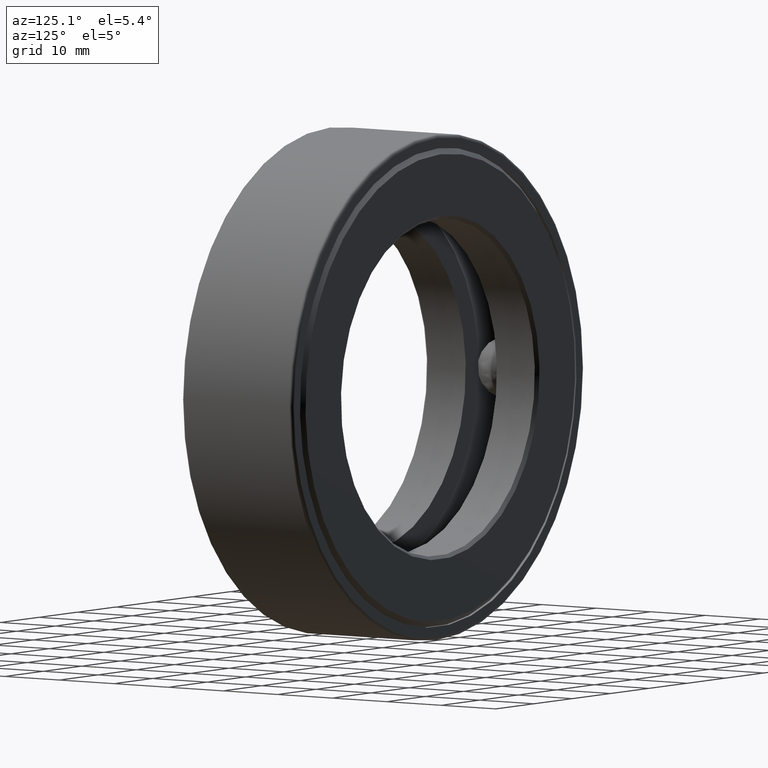
[diagram: clean part render]
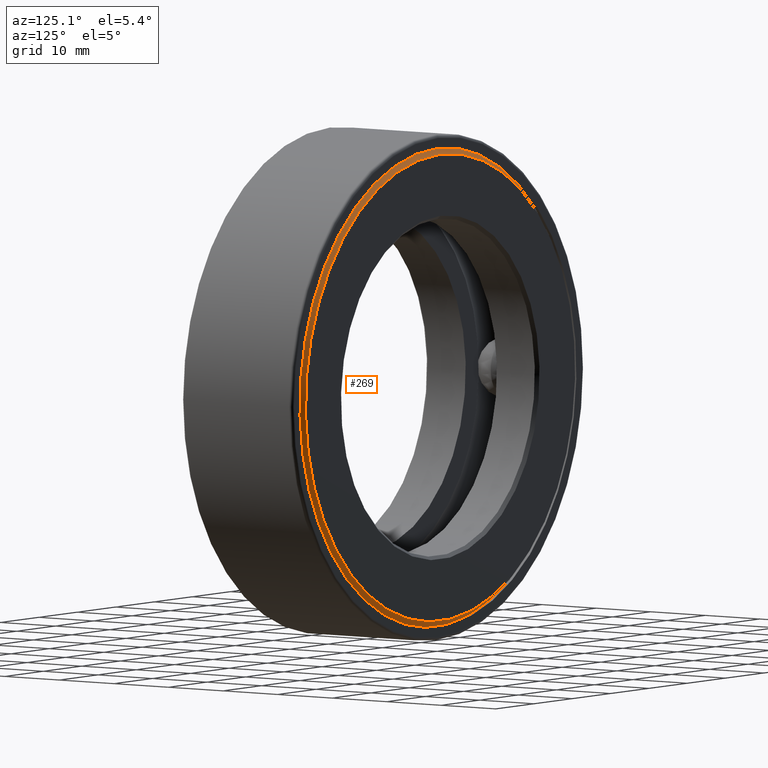
[diagram: same view with one face highlighted and labeled with its STEP entity id]
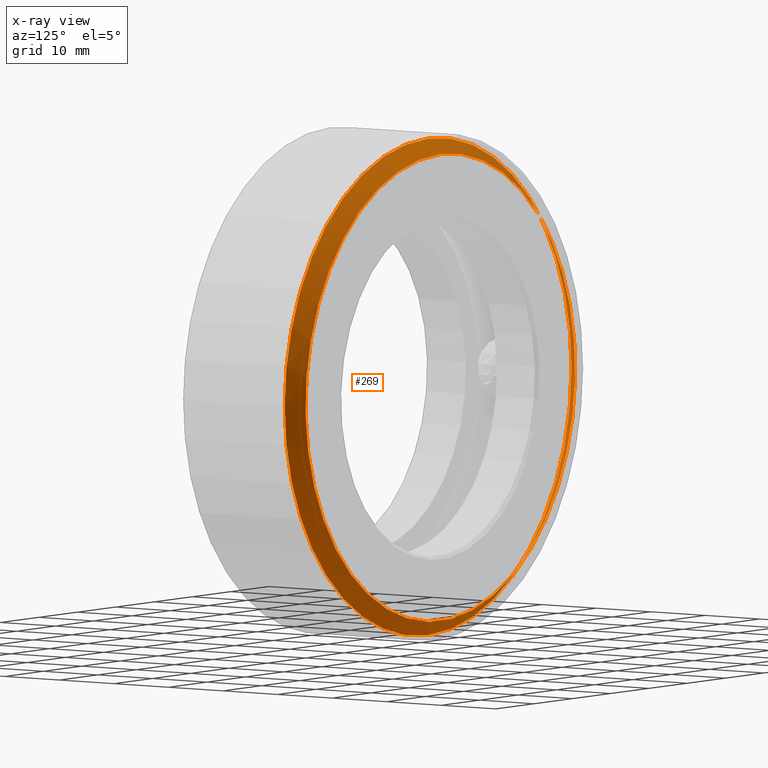
[diagram: x-ray of the same camera — body ghosted, the highlighted face saturated]
A machine part, auxiliary view. The second image highlights one B-rep face of the part: STEP entity #269.
The next image is the same camera in x-ray: the body ghosted, the highlighted face saturated — about 0% of this face is hidden behind the body in this view.
In plain terms, the highlighted conical surface has half-angle 45 deg.
Its self-contained STEP definition (entity closure, byte-faithful):
#74 = VERTEX_POINT ( 'NONE', #161 ) ;
#109 = DIRECTION ( 'NONE',  ( 0.0000000000000000000, 0.0000000000000000000, 1.000000000000000000 ) ) ;
#112 = CARTESIAN_POINT ( 'NONE',  ( 0.0000000000000000000, 0.7245000000000004800, 0.0000000000000000000 ) ) ;
#153 = DIRECTION ( 'NONE',  ( 0.0000000000000000000, 0.0000000000000000000, -1.000000000000000000 ) ) ;
#161 = CARTESIAN_POINT ( 'NONE',  ( 0.0000000000000000000, 0.8124999999999998900, 1.385000000000000000 ) ) ;
#166 = ORIENTED_EDGE ( 'NONE', *, *, #324, .F. ) ;
#172 = CONICAL_SURFACE ( 'NONE', #231, 1.385000000000000000, 0.7853981633974498300 ) ;
#201 = DIRECTION ( 'NONE',  ( -0.0000000000000000000, 1.000000000000000000, -0.0000000000000000000 ) ) ;
#202 = CIRCLE ( 'NONE', #292, 1.385000000000000000 ) ;
#224 = FACE_OUTER_BOUND ( 'NONE', #580, .T. ) ;
#231 = AXIS2_PLACEMENT_3D ( 'NONE', #500, #341, #153 ) ;
#254 = VERTEX_POINT ( 'NONE', #264 ) ;
#258 = EDGE_CURVE ( 'NONE', #254, #254, #358, .T. ) ;
#264 = CARTESIAN_POINT ( 'NONE',  ( 0.0000000000000000000, 0.7245000000000004800, 1.472999999999999900 ) ) ;
#269 = ADVANCED_FACE ( 'NONE', ( #224, #474 ), #172, .T. ) ;
#292 = AXIS2_PLACEMENT_3D ( 'NONE', #555, #201, #596 ) ;
#320 = AXIS2_PLACEMENT_3D ( 'NONE', #112, #345, #109 ) ;
#324 = EDGE_CURVE ( 'NONE', #74, #74, #202, .T. ) ;
#341 = DIRECTION ( 'NONE',  ( 0.0000000000000000000, -1.000000000000000000, 0.0000000000000000000 ) ) ;
#345 = DIRECTION ( 'NONE',  ( -0.0000000000000000000, 1.000000000000000000, -0.0000000000000000000 ) ) ;
#358 = CIRCLE ( 'NONE', #320, 1.472999999999999900 ) ;
#460 = ORIENTED_EDGE ( 'NONE', *, *, #258, .T. ) ;
#474 = FACE_BOUND ( 'NONE', #545, .T. ) ;
#500 = CARTESIAN_POINT ( 'NONE',  ( 0.0000000000000000000, 0.8124999999999998900, 0.0000000000000000000 ) ) ;
#545 = EDGE_LOOP ( 'NONE', ( #166 ) ) ;
#555 = CARTESIAN_POINT ( 'NONE',  ( 0.0000000000000000000, 0.8124999999999998900, 0.0000000000000000000 ) ) ;
#580 = EDGE_LOOP ( 'NONE', ( #460 ) ) ;
#596 = DIRECTION ( 'NONE',  ( 0.0000000000000000000, 0.0000000000000000000, 1.000000000000000000 ) ) ;